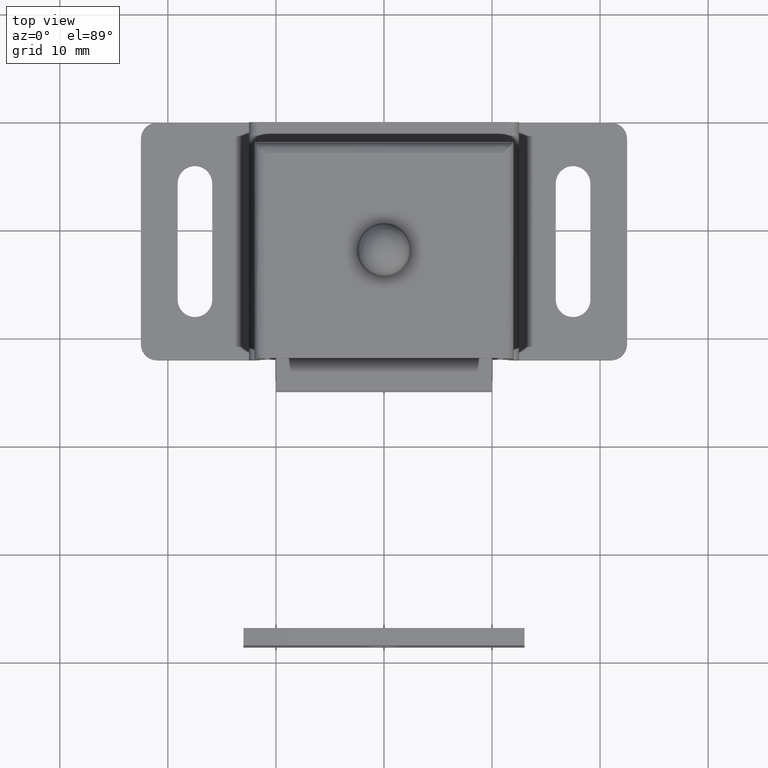
[diagram: clean part render]
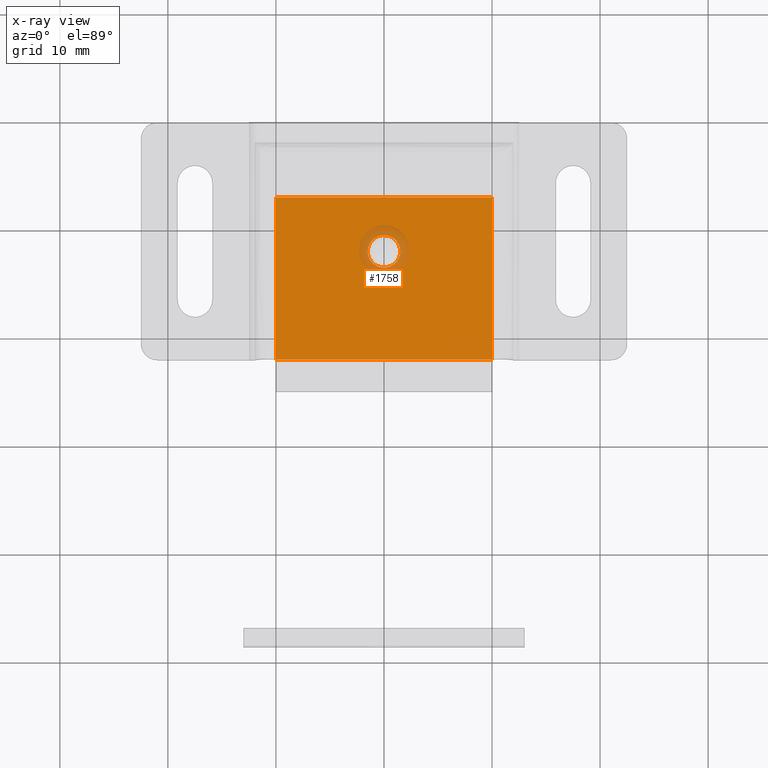
[diagram: x-ray — body ghosted, one internal face saturated and labeled with its STEP entity id]
A machine part, top view, then the same camera in x-ray: the body is ghosted and one INTERNAL B-rep face — a face not visible from any outside direction — is saturated and labeled: STEP entity #1758.
In plain terms, the highlighted face is a freeform B-spline surface patch.
Its self-contained STEP definition (entity closure, byte-faithful):
#1553=CARTESIAN_POINT('',(1.500000000000000,-12.000004000000020,5.199997000000000));
#1554=VERTEX_POINT('',#1553);
#1555=CARTESIAN_POINT('',(0.013089803438856,-13.499946884594610,5.199997000000000));
#1556=VERTEX_POINT('',#1555);
#1557=CARTESIAN_POINT('',(1.500000000000000,-12.000004000000020,5.199997000000000));
#1558=CARTESIAN_POINT('',(1.500000000000000,-13.486970815702838,5.199997000000000));
#1559=CARTESIAN_POINT('',(0.013089803438856,-13.499946884594607,5.199997000000001));
#1567=(BOUNDED_CURVE()B_SPLINE_CURVE(2,(#1557,#1558,#1559),.UNSPECIFIED.,.F.,.U.)B_SPLINE_CURVE_WITH_KNOTS((3,3),(0.0,0.248460105642549),.UNSPECIFIED.)CURVE()GEOMETRIC_REPRESENTATION_ITEM()RATIONAL_B_SPLINE_CURVE((1.0,0.708910879646494,0.996414028048417))REPRESENTATION_ITEM(''));
#1568=EDGE_CURVE('',#1554,#1556,#1567,.T.);
#1609=CARTESIAN_POINT('',(-0.013089803438856,-10.500061115405430,5.199997000000000));
#1610=VERTEX_POINT('',#1609);
#1616=CARTESIAN_POINT('',(-0.013089803438855,-10.500061115405439,5.199996999999999));
#1617=CARTESIAN_POINT('',(-0.006545026326705,-10.500004000000022,5.199997000000000));
#1618=CARTESIAN_POINT('',(0.0,-10.500004000000020,5.199997000000000));
#1619=CARTESIAN_POINT('',(1.500000000000000,-10.500004000000022,5.199997000000001));
#1620=CARTESIAN_POINT('',(1.500000000000000,-12.000004000000020,5.199997000000000));
#1628=(BOUNDED_CURVE()B_SPLINE_CURVE(2,(#1616,#1617,#1618,#1619,#1620),.UNSPECIFIED.,.F.,.U.)B_SPLINE_CURVE_WITH_KNOTS((3,2,3),(0.748460105642549,0.750000000000000,1.0),.UNSPECIFIED.)CURVE()GEOMETRIC_REPRESENTATION_ITEM()RATIONAL_B_SPLINE_CURVE((0.996414028048417,0.998195901540054,1.0,0.707106781186548,1.0))REPRESENTATION_ITEM(''));
#1629=EDGE_CURVE('',#1610,#1554,#1628,.T.);
#1652=CARTESIAN_POINT('',(-1.500000000000000,-12.000004000000020,5.199997000000000));
#1653=VERTEX_POINT('',#1652);
#1654=CARTESIAN_POINT('',(0.013089803438856,-13.499946884594607,5.199997000000001));
#1655=CARTESIAN_POINT('',(0.006545026326705,-13.500004000000024,5.199997000000001));
#1656=CARTESIAN_POINT('',(0.0,-13.500004000000020,5.199997000000000));
#1657=CARTESIAN_POINT('',(-1.500000000000000,-13.500004000000020,5.199997000000001));
#1658=CARTESIAN_POINT('',(-1.500000000000000,-12.000004000000020,5.199997000000000));
#1666=(BOUNDED_CURVE()B_SPLINE_CURVE(2,(#1654,#1655,#1656,#1657,#1658),.UNSPECIFIED.,.F.,.U.)B_SPLINE_CURVE_WITH_KNOTS((3,2,3),(0.248460105642549,0.250000000000000,0.500000000000000),.UNSPECIFIED.)CURVE()GEOMETRIC_REPRESENTATION_ITEM()RATIONAL_B_SPLINE_CURVE((0.996414028048417,0.998195901540053,1.0,0.707106781186548,1.0))REPRESENTATION_ITEM(''));
#1667=EDGE_CURVE('',#1556,#1653,#1666,.T.);
#1669=CARTESIAN_POINT('',(-1.500000000000000,-12.000004000000020,5.199997000000000));
#1670=CARTESIAN_POINT('',(-1.500000000000000,-10.513037184297202,5.199997000000001));
#1671=CARTESIAN_POINT('',(-0.013089803438855,-10.500061115405439,5.199996999999999));
#1679=(BOUNDED_CURVE()B_SPLINE_CURVE(2,(#1669,#1670,#1671),.UNSPECIFIED.,.F.,.U.)B_SPLINE_CURVE_WITH_KNOTS((3,3),(0.500000000000000,0.748460105642549),.UNSPECIFIED.)CURVE()GEOMETRIC_REPRESENTATION_ITEM()RATIONAL_B_SPLINE_CURVE((1.0,0.708910879646494,0.996414028048417))REPRESENTATION_ITEM(''));
#1680=EDGE_CURVE('',#1653,#1610,#1679,.T.);
#1717=CARTESIAN_POINT('',(-10.998999811386129,-22.749249970927089,5.199997000000000));
#1718=CARTESIAN_POINT('',(10.998997347827849,-22.749249970927089,5.199997000000000));
#1719=CARTESIAN_POINT('',(-10.998999811386129,-6.250749626741558,5.199997000000000));
#1720=CARTESIAN_POINT('',(10.998997347827849,-6.250749626741558,5.199997000000000));
#1721=B_SPLINE_SURFACE_WITH_KNOTS('',1,1,((#1717,#1719),(#1718,#1720)),.UNSPECIFIED.,.F.,.F.,.U.,(2,2),(2,2),(0.0,21.997997159213970),(0.0,16.498500344185530),.UNSPECIFIED.);
#1722=CARTESIAN_POINT('',(9.999997000000001,-22.0,5.199997000000000));
#1723=VERTEX_POINT('',#1722);
#1724=CARTESIAN_POINT('',(-10.0,-22.0,5.199997000000000));
#1725=VERTEX_POINT('',#1724);
#1726=CARTESIAN_POINT('',(9.999997000000001,-22.0,5.199997000000000));
#1727=CARTESIAN_POINT('',(-10.0,-22.0,5.199997000000000));
#1728=QUASI_UNIFORM_CURVE('',1,(#1726,#1727),.UNSPECIFIED.,.F.,.U.);
#1729=EDGE_CURVE('',#1723,#1725,#1728,.T.);
#1730=ORIENTED_EDGE('',*,*,#1729,.T.);
#1731=CARTESIAN_POINT('',(-10.0,-7.0,5.199997000000000));
#1732=VERTEX_POINT('',#1731);
#1733=CARTESIAN_POINT('',(-10.0,-7.0,5.199997000000000));
#1734=CARTESIAN_POINT('',(-10.0,-22.0,5.199997000000000));
#1735=QUASI_UNIFORM_CURVE('',1,(#1733,#1734),.UNSPECIFIED.,.F.,.U.);
#1736=EDGE_CURVE('',#1732,#1725,#1735,.T.);
#1737=ORIENTED_EDGE('',*,*,#1736,.F.);
#1738=CARTESIAN_POINT('',(9.999997000000001,-7.0,5.199997000000000));
#1739=VERTEX_POINT('',#1738);
#1740=CARTESIAN_POINT('',(9.999997000000001,-7.0,5.199997000000000));
#1741=CARTESIAN_POINT('',(-10.0,-7.0,5.199997000000000));
#1742=QUASI_UNIFORM_CURVE('',1,(#1740,#1741),.UNSPECIFIED.,.F.,.U.);
#1743=EDGE_CURVE('',#1739,#1732,#1742,.T.);
#1744=ORIENTED_EDGE('',*,*,#1743,.F.);
#1745=CARTESIAN_POINT('',(9.999997000000001,-7.0,5.199997000000000));
#1746=CARTESIAN_POINT('',(9.999997000000001,-22.0,5.199997000000000));
#1747=QUASI_UNIFORM_CURVE('',1,(#1745,#1746),.UNSPECIFIED.,.F.,.U.);
#1748=EDGE_CURVE('',#1739,#1723,#1747,.T.);
#1749=ORIENTED_EDGE('',*,*,#1748,.T.);
#1750=EDGE_LOOP('',(#1730,#1737,#1744,#1749));
#1751=FACE_OUTER_BOUND('',#1750,.T.);
#1752=ORIENTED_EDGE('',*,*,#1680,.F.);
#1753=ORIENTED_EDGE('',*,*,#1667,.F.);
#1754=ORIENTED_EDGE('',*,*,#1568,.F.);
#1755=ORIENTED_EDGE('',*,*,#1629,.F.);
#1756=EDGE_LOOP('',(#1752,#1753,#1754,#1755));
#1757=FACE_BOUND('',#1756,.T.);
#1758=ADVANCED_FACE('',(#1751,#1757),#1721,.F.);